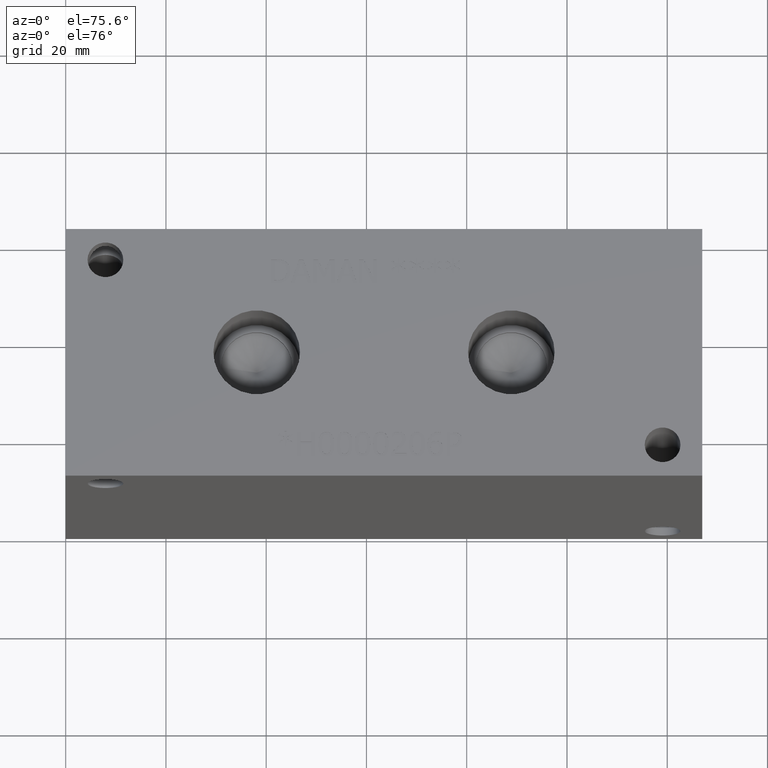
[diagram: clean part render]
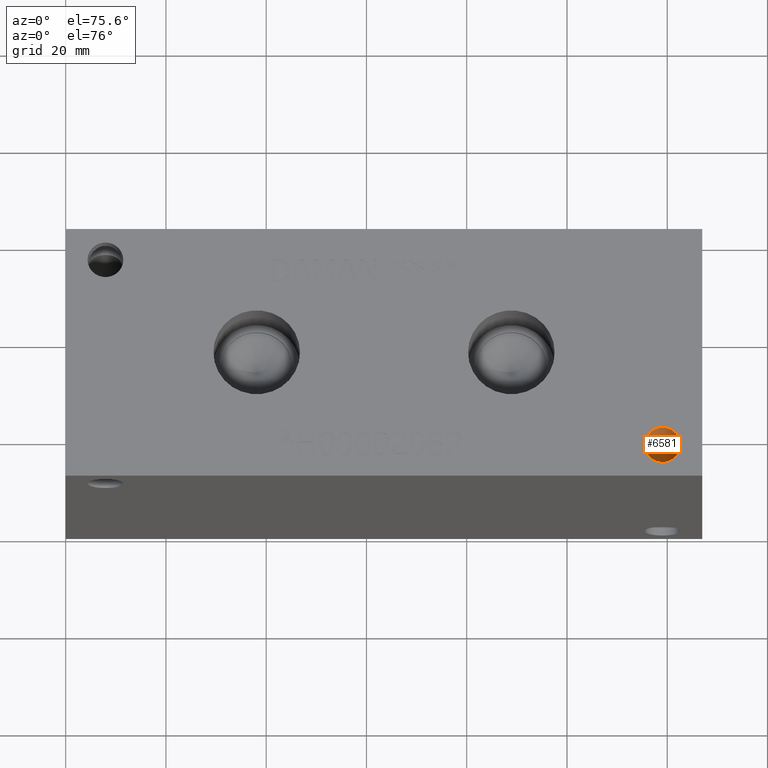
[diagram: same view with one face highlighted and labeled with its STEP entity id]
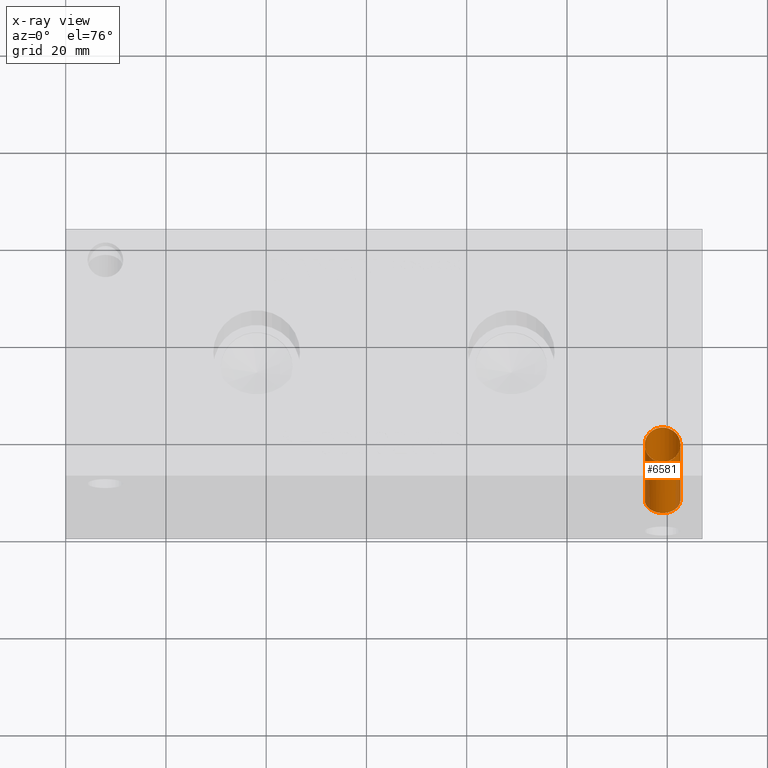
[diagram: x-ray of the same camera — body ghosted, the highlighted face saturated]
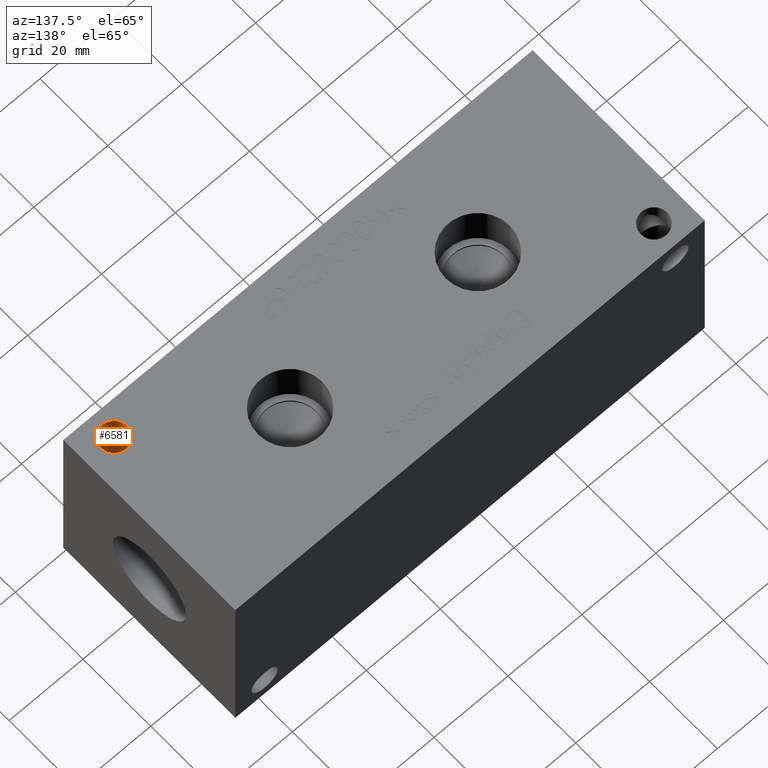
[diagram: same view with one face highlighted and labeled with its STEP entity id]
A machine part, auxiliary view. The second image highlights one B-rep face of the part: STEP entity #6581.
The next image is the same camera in x-ray: the body ghosted, the highlighted face saturated — about 11% of this face is hidden behind the body in this view.
A second angle (auxiliary view) of the same face is appended — the face is thin or edge-on in the first view.
In plain terms, the highlighted cylindrical surface (bore or boss wall) has radius 3.5687 mm, axis along (0, 0, 1).
Its self-contained STEP definition (entity closure, byte-faithful):
#22=ELLIPSE('',#6838,5.04690394004086,3.5687);
#25=ELLIPSE('',#6842,5.04690394004086,3.5687);
#31=CYLINDRICAL_SURFACE('',#6845,3.5687);
#44=CIRCLE('',#6679,3.5687);
#45=CIRCLE('',#6680,3.5687);
#644=FACE_OUTER_BOUND('',#1011,.T.);
#1011=EDGE_LOOP('',(#5748,#5749,#5750,#5751,#5752,#5753));
#1670=LINE('',#11212,#2315);
#2315=VECTOR('',#7972,3.5687);
#2962=VERTEX_POINT('',#10505);
#2963=VERTEX_POINT('',#10506);
#3119=VERTEX_POINT('',#11198);
#3120=VERTEX_POINT('',#11200);
#3712=EDGE_CURVE('',#2962,#2963,#44,.T.);
#3713=EDGE_CURVE('',#2963,#2962,#45,.T.);
#4005=EDGE_CURVE('',#3120,#3119,#22,.T.);
#4008=EDGE_CURVE('',#3119,#3120,#25,.T.);
#4012=EDGE_CURVE('',#2963,#3119,#1670,.T.);
#5748=ORIENTED_EDGE('',*,*,#3712,.F.);
#5749=ORIENTED_EDGE('',*,*,#3713,.F.);
#5750=ORIENTED_EDGE('',*,*,#4012,.T.);
#5751=ORIENTED_EDGE('',*,*,#4008,.T.);
#5752=ORIENTED_EDGE('',*,*,#4005,.T.);
#5753=ORIENTED_EDGE('',*,*,#4012,.F.);
#6581=ADVANCED_FACE('',(#644),#31,.F.);
#6679=AXIS2_PLACEMENT_3D('',#10507,#7370,#7371);
#6680=AXIS2_PLACEMENT_3D('',#10508,#7372,#7373);
#6838=AXIS2_PLACEMENT_3D('',#11201,#7954,#7955);
#6842=AXIS2_PLACEMENT_3D('',#11205,#7962,#7963);
#6845=AXIS2_PLACEMENT_3D('',#11211,#7970,#7971);
#7370=DIRECTION('center_axis',(0.,0.,-1.));
#7371=DIRECTION('ref_axis',(1.,0.,0.));
#7372=DIRECTION('center_axis',(0.,0.,-1.));
#7373=DIRECTION('ref_axis',(1.,0.,0.));
#7954=DIRECTION('center_axis',(0.,-0.707106781186548,-0.707106781186547));
#7955=DIRECTION('ref_axis',(0.,-0.707106781186547,0.707106781186548));
#7962=DIRECTION('center_axis',(0.,0.707106781186548,-0.707106781186547));
#7963=DIRECTION('ref_axis',(0.,0.707106781186547,0.707106781186548));
#7970=DIRECTION('center_axis',(0.,0.,1.));
#7971=DIRECTION('ref_axis',(1.,0.,0.));
#7972=DIRECTION('',(0.,0.,-1.));
#10505=CARTESIAN_POINT('',(122.6439,6.35,50.8));
#10506=CARTESIAN_POINT('',(115.5065,6.35,50.8));
#10507=CARTESIAN_POINT('Origin',(119.0752,6.35,50.8));
#10508=CARTESIAN_POINT('Origin',(119.0752,6.35,50.8));
#11198=CARTESIAN_POINT('',(115.5065,6.35,6.35));
#11200=CARTESIAN_POINT('',(122.6439,6.35,6.35));
#11201=CARTESIAN_POINT('Origin',(119.0752,6.35,6.35));
#11205=CARTESIAN_POINT('Origin',(119.0752,6.35,6.35));
#11211=CARTESIAN_POINT('Origin',(119.0752,6.35,-95.1118912220659));
#11212=CARTESIAN_POINT('',(115.5065,6.35,-95.1118912220659));